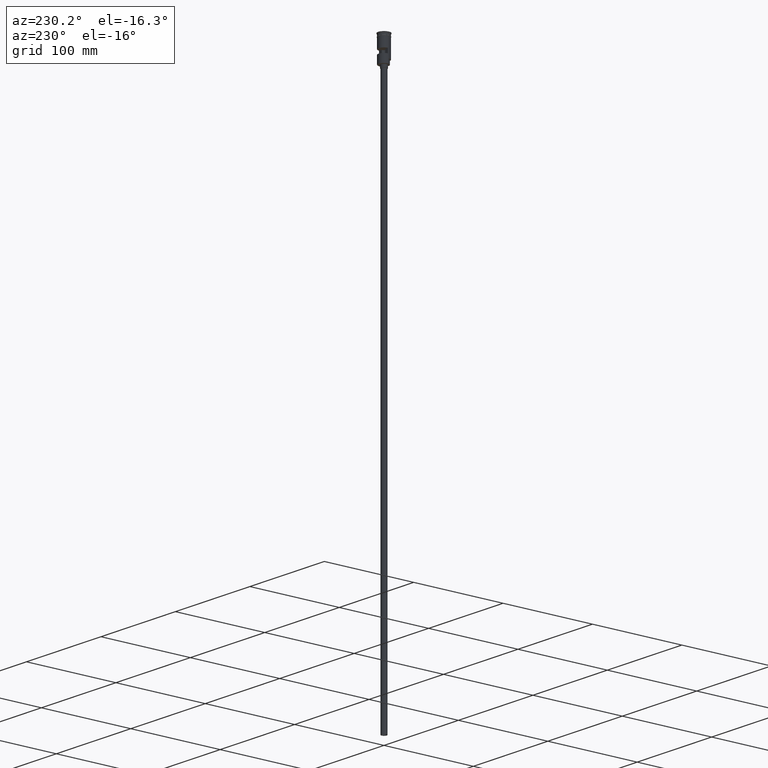
[diagram: clean part render]
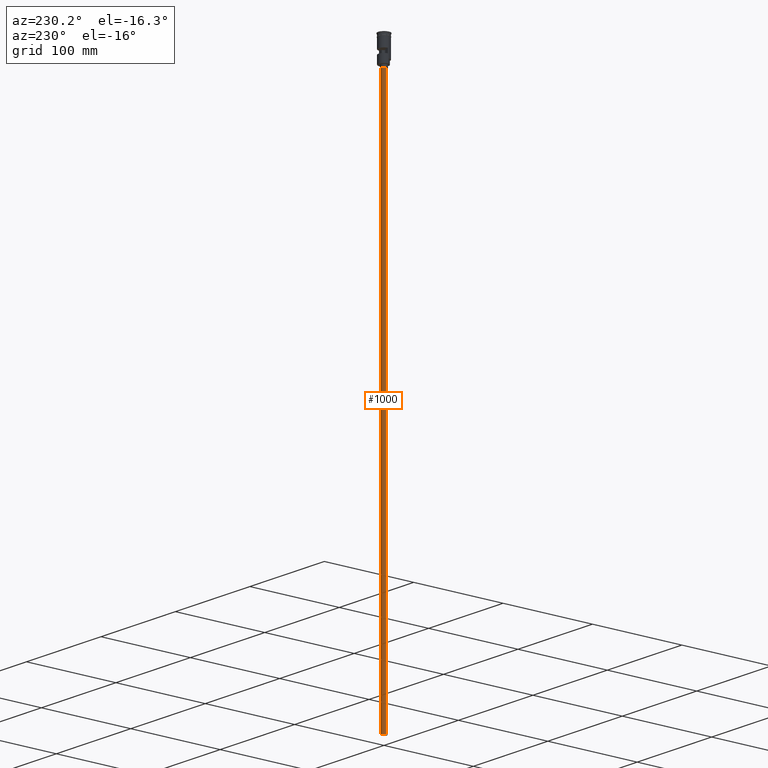
[diagram: same view with one face highlighted and labeled with its STEP entity id]
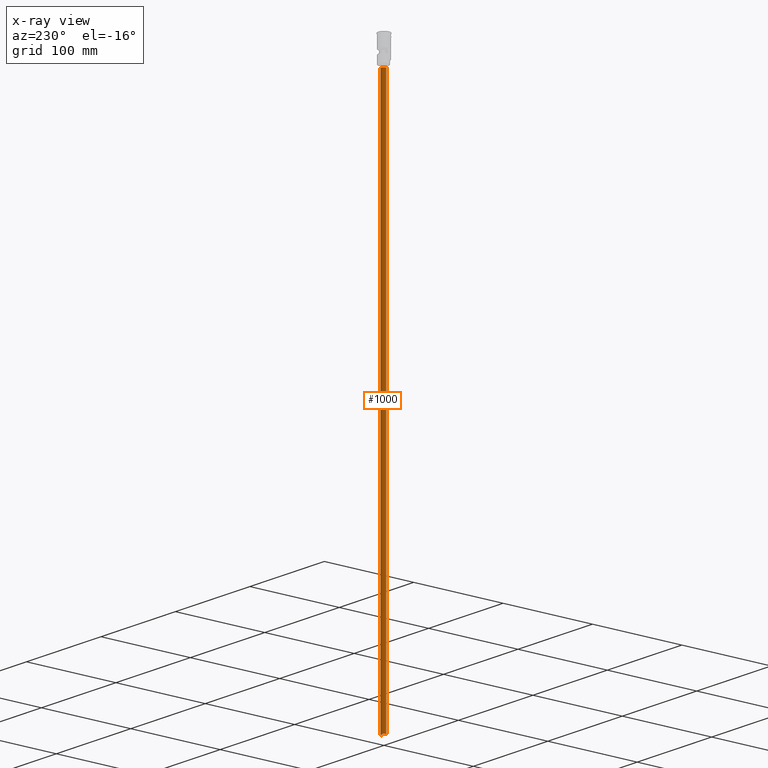
[diagram: x-ray of the same camera — body ghosted, the highlighted face saturated]
A machine part, auxiliary view. The second image highlights one B-rep face of the part: STEP entity #1000.
The next image is the same camera in x-ray: the body ghosted, the highlighted face saturated — about 0% of this face is hidden behind the body in this view.
In plain terms, the highlighted cylindrical surface (edge-blend (fillet) strip) has radius 3 mm, axis along (-0, -0, 1).
Its self-contained STEP definition (entity closure, byte-faithful):
#3 = EDGE_CURVE ( 'NONE', #980, #817, #1580, .T. ) ;
#42 = EDGE_CURVE ( 'NONE', #370, #980, #916, .T. ) ;
#51 = VECTOR ( 'NONE', #813, 1000.000000000000000 ) ;
#82 = DIRECTION ( 'NONE',  ( -1.000000000000000000, 0.000000000000000000, 0.000000000000000000 ) ) ;
#113 = DIRECTION ( 'NONE',  ( 1.000000000000000000, 0.000000000000000000, 0.000000000000000000 ) ) ;
#237 = CYLINDRICAL_SURFACE ( 'NONE', #1169, 3.000000000000000444 ) ;
#320 = EDGE_CURVE ( 'NONE', #370, #364, #1187, .T. ) ;
#328 = CARTESIAN_POINT ( 'NONE',  ( 3.000000000000000444, 0.000000000000000000, -628.5000000000000000 ) ) ;
#364 = VERTEX_POINT ( 'NONE', #1180 ) ;
#370 = VERTEX_POINT ( 'NONE', #985 ) ;
#376 = DIRECTION ( 'NONE',  ( -0.000000000000000000, -0.000000000000000000, 1.000000000000000000 ) ) ;
#414 = ORIENTED_EDGE ( 'NONE', *, *, #320, .F. ) ;
#467 = DIRECTION ( 'NONE',  ( 0.000000000000000000, 0.000000000000000000, -1.000000000000000000 ) ) ;
#477 = AXIS2_PLACEMENT_3D ( 'NONE', #1105, #635, #1130 ) ;
#603 = EDGE_LOOP ( 'NONE', ( #414, #760, #1335, #1505 ) ) ;
#635 = DIRECTION ( 'NONE',  ( 0.000000000000000000, 0.000000000000000000, -1.000000000000000000 ) ) ;
#644 = CARTESIAN_POINT ( 'NONE',  ( -3.000000000000000444, 3.673940397442060361E-16, -31.50000000000000000 ) ) ;
#673 = CARTESIAN_POINT ( 'NONE',  ( 3.000000000000000444, 0.000000000000000000, -31.50000000000000000 ) ) ;
#735 = DIRECTION ( 'NONE',  ( -0.000000000000000000, -0.000000000000000000, 1.000000000000000000 ) ) ;
#759 = CARTESIAN_POINT ( 'NONE',  ( 0.000000000000000000, 0.000000000000000000, -628.5000000000000000 ) ) ;
#760 = ORIENTED_EDGE ( 'NONE', *, *, #42, .T. ) ;
#813 = DIRECTION ( 'NONE',  ( -0.000000000000000000, -0.000000000000000000, 1.000000000000000000 ) ) ;
#817 = VERTEX_POINT ( 'NONE', #673 ) ;
#916 = LINE ( 'NONE', #1400, #51 ) ;
#934 = VECTOR ( 'NONE', #735, 1000.000000000000000 ) ;
#980 = VERTEX_POINT ( 'NONE', #644 ) ;
#985 = CARTESIAN_POINT ( 'NONE',  ( -3.000000000000000444, 3.673940397442060361E-16, -628.5000000000000000 ) ) ;
#1000 = ADVANCED_FACE ( 'NONE', ( #1460 ), #237, .T. ) ;
#1076 = CARTESIAN_POINT ( 'NONE',  ( 0.000000000000000000, 0.000000000000000000, -31.50000000000000000 ) ) ;
#1105 = CARTESIAN_POINT ( 'NONE',  ( 0.000000000000000000, 0.000000000000000000, -628.5000000000000000 ) ) ;
#1130 = DIRECTION ( 'NONE',  ( -1.000000000000000000, 0.000000000000000000, 0.000000000000000000 ) ) ;
#1169 = AXIS2_PLACEMENT_3D ( 'NONE', #759, #376, #113 ) ;
#1180 = CARTESIAN_POINT ( 'NONE',  ( 3.000000000000000444, 0.000000000000000000, -628.5000000000000000 ) ) ;
#1187 = CIRCLE ( 'NONE', #477, 3.000000000000000444 ) ;
#1320 = LINE ( 'NONE', #328, #934 ) ;
#1335 = ORIENTED_EDGE ( 'NONE', *, *, #3, .T. ) ;
#1352 = EDGE_CURVE ( 'NONE', #364, #817, #1320, .T. ) ;
#1400 = CARTESIAN_POINT ( 'NONE',  ( -3.000000000000000444, 3.673940397442060361E-16, -628.5000000000000000 ) ) ;
#1443 = AXIS2_PLACEMENT_3D ( 'NONE', #1076, #467, #82 ) ;
#1460 = FACE_OUTER_BOUND ( 'NONE', #603, .T. ) ;
#1505 = ORIENTED_EDGE ( 'NONE', *, *, #1352, .F. ) ;
#1580 = CIRCLE ( 'NONE', #1443, 3.000000000000000444 ) ;